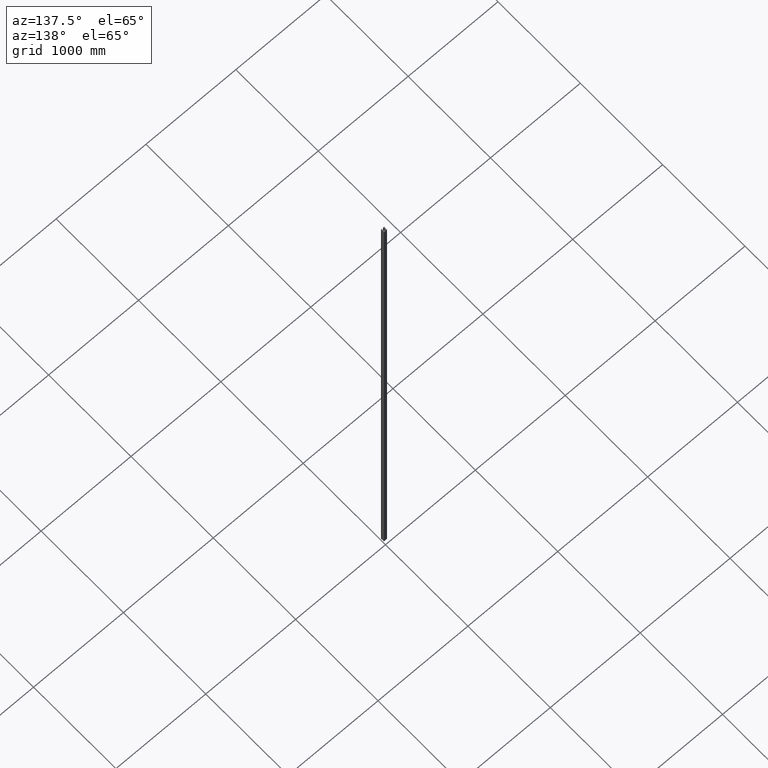
[diagram: clean part render]
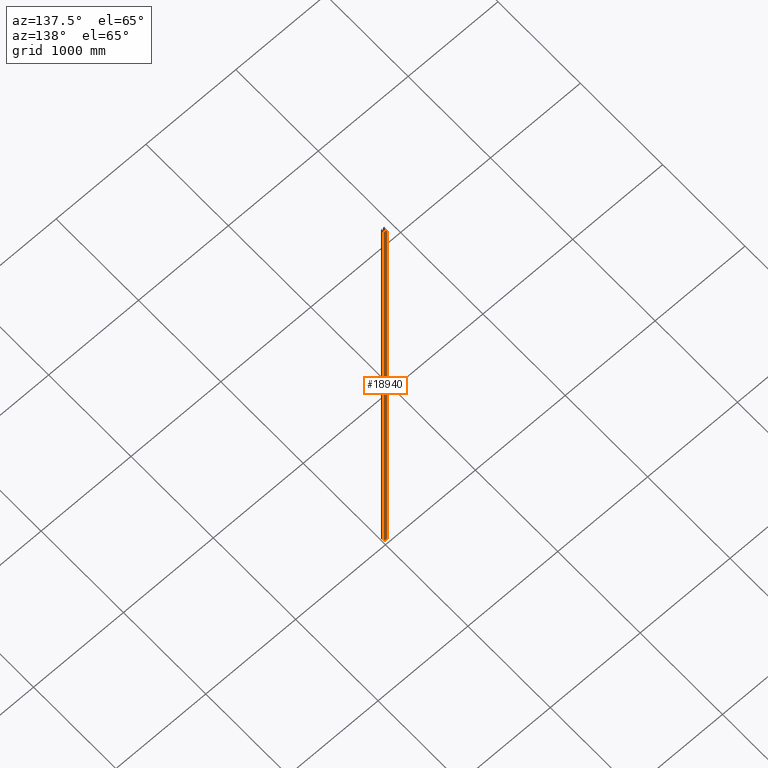
[diagram: same view with one face highlighted and labeled with its STEP entity id]
A machine part, auxiliary view. The second image highlights one B-rep face of the part: STEP entity #18940.
In plain terms, the highlighted planar face has unit normal (-0, -1, 0).
Its self-contained STEP definition (entity closure, byte-faithful):
#275 = PLANE ( 'NONE',  #18396 ) ;
#526 = EDGE_CURVE ( 'NONE', #5327, #17730, #7832, .T. ) ;
#1625 = ORIENTED_EDGE ( 'NONE', *, *, #8313, .F. ) ;
#1716 = FACE_OUTER_BOUND ( 'NONE', #1835, .T. ) ;
#1835 = EDGE_LOOP ( 'NONE', ( #11871, #5748, #1625, #8563 ) ) ;
#2522 = CARTESIAN_POINT ( 'NONE',  ( -15.40000000006766712, 2.385244779468109755E-15, 3000.000000000000000 ) ) ;
#4784 = CARTESIAN_POINT ( 'NONE',  ( 15.40000000006766712, 6.157156920860293650E-15, 3000.000000000000000 ) ) ;
#5085 = DIRECTION ( 'NONE',  ( 1.000000000000000000, -1.548860246401057685E-16, 0.000000000000000000 ) ) ;
#5153 = VERTEX_POINT ( 'NONE', #2522 ) ;
#5327 = VERTEX_POINT ( 'NONE', #4784 ) ;
#5748 = ORIENTED_EDGE ( 'NONE', *, *, #11331, .F. ) ;
#5842 = VECTOR ( 'NONE', #8734, 1000.000000000000000 ) ;
#6325 = VECTOR ( 'NONE', #13838, 1000.000000000000000 ) ;
#6529 = DIRECTION ( 'NONE',  ( -1.548860246401057685E-16, -1.000000000000000000, 0.000000000000000000 ) ) ;
#7122 = CARTESIAN_POINT ( 'NONE',  ( -15.40000000006766712, 2.385244779468109755E-15, 3000.000000000000000 ) ) ;
#7832 = LINE ( 'NONE', #18516, #6325 ) ;
#8313 = EDGE_CURVE ( 'NONE', #5327, #5153, #14049, .T. ) ;
#8414 = DIRECTION ( 'NONE',  ( -1.000000000000000000, 1.548860246401057932E-16, -0.000000000000000000 ) ) ;
#8563 = ORIENTED_EDGE ( 'NONE', *, *, #526, .T. ) ;
#8734 = DIRECTION ( 'NONE',  ( -1.000000000000000000, 1.548860246401057932E-16, -0.000000000000000000 ) ) ;
#10531 = CARTESIAN_POINT ( 'NONE',  ( -15.40000000006766712, 2.385244779468109755E-15, 3000.000000000000000 ) ) ;
#11331 = EDGE_CURVE ( 'NONE', #5153, #13044, #16343, .T. ) ;
#11336 = CARTESIAN_POINT ( 'NONE',  ( -15.40000000006766712, 2.385244779468109755E-15, 3000.000000000000000 ) ) ;
#11830 = CARTESIAN_POINT ( 'NONE',  ( -15.40000000006766712, 2.385244779468109755E-15, -3000.000000000000000 ) ) ;
#11871 = ORIENTED_EDGE ( 'NONE', *, *, #15886, .T. ) ;
#13044 = VERTEX_POINT ( 'NONE', #11830 ) ;
#13447 = DIRECTION ( 'NONE',  ( -0.000000000000000000, -0.000000000000000000, -1.000000000000000000 ) ) ;
#13782 = VECTOR ( 'NONE', #8414, 1000.000000000000000 ) ;
#13838 = DIRECTION ( 'NONE',  ( 0.000000000000000000, 0.000000000000000000, -1.000000000000000000 ) ) ;
#14049 = LINE ( 'NONE', #7122, #5842 ) ;
#14293 = CARTESIAN_POINT ( 'NONE',  ( -15.40000000006766712, 2.385244779468109755E-15, -3000.000000000000000 ) ) ;
#15886 = EDGE_CURVE ( 'NONE', #17730, #13044, #17977, .T. ) ;
#16343 = LINE ( 'NONE', #10531, #19566 ) ;
#17189 = CARTESIAN_POINT ( 'NONE',  ( 15.40000000006766712, 6.157156920860293650E-15, -3000.000000000000000 ) ) ;
#17730 = VERTEX_POINT ( 'NONE', #17189 ) ;
#17977 = LINE ( 'NONE', #14293, #13782 ) ;
#18396 = AXIS2_PLACEMENT_3D ( 'NONE', #11336, #6529, #5085 ) ;
#18516 = CARTESIAN_POINT ( 'NONE',  ( 15.40000000006766712, 6.157156920860293650E-15, 3000.000000000000000 ) ) ;
#18940 = ADVANCED_FACE ( 'NONE', ( #1716 ), #275, .F. ) ;
#19566 = VECTOR ( 'NONE', #13447, 1000.000000000000000 ) ;